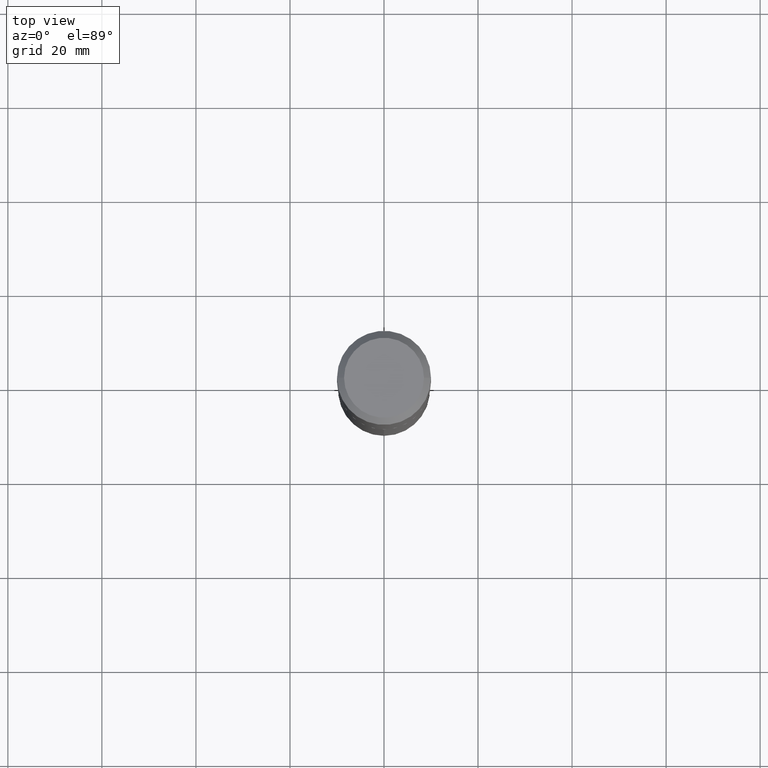
[diagram: clean part render]
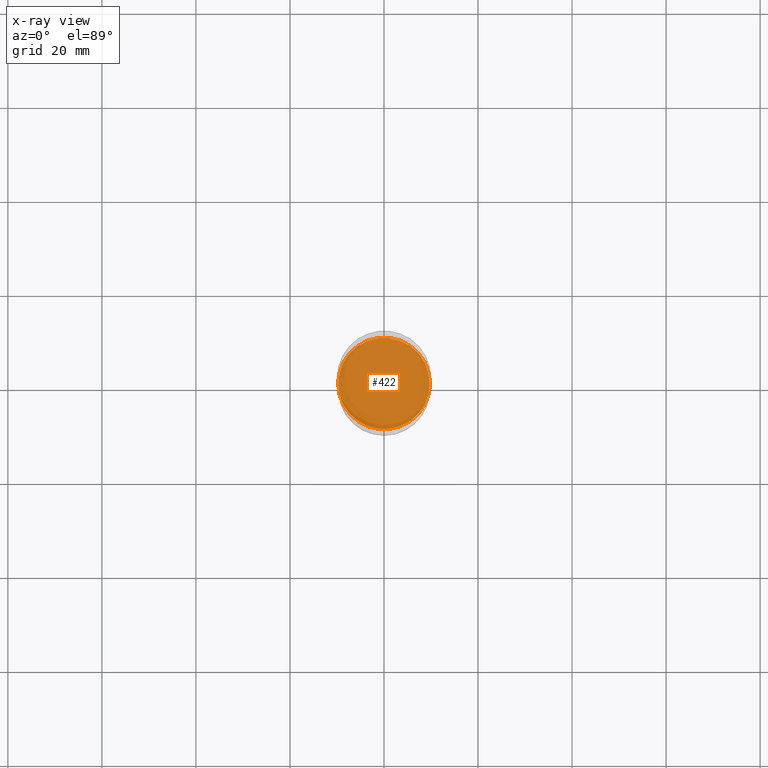
[diagram: x-ray — body ghosted, one internal face saturated and labeled with its STEP entity id]
A machine part, top view, then the same camera in x-ray: the body is ghosted and one INTERNAL B-rep face — a face not visible from any outside direction — is saturated and labeled: STEP entity #422.
In plain terms, the highlighted planar face has unit normal (-0, 0, 1).
Its self-contained STEP definition (entity closure, byte-faithful):
#19 = DIRECTION ( 'NONE',  ( 1.000000000000000000, -6.982962677686265922E-15, 4.876176775795935793E-29 ) ) ;
#23 = EDGE_LOOP ( 'NONE', ( #460, #24 ) ) ;
#24 = ORIENTED_EDGE ( 'NONE', *, *, #274, .F. ) ;
#45 = AXIS2_PLACEMENT_3D ( 'NONE', #257, #216, #19 ) ;
#55 = VERTEX_POINT ( 'NONE', #357 ) ;
#67 = FACE_OUTER_BOUND ( 'NONE', #23, .T. ) ;
#74 = DIRECTION ( 'NONE',  ( 1.000000000000000000, -6.982962677686268288E-15, 0.000000000000000000 ) ) ;
#116 = DIRECTION ( 'NONE',  ( -2.445468806185136597E-29, 3.491481338843145583E-15, 1.000000000000000000 ) ) ;
#175 = CARTESIAN_POINT ( 'NONE',  ( -0.3833500000000000241, -7.101656015999113082E-15, -2.814900000000000180 ) ) ;
#200 = AXIS2_PLACEMENT_3D ( 'NONE', #308, #116, #262 ) ;
#216 = DIRECTION ( 'NONE',  ( -2.438088387897960049E-29, 3.491481338843145188E-15, 1.000000000000000000 ) ) ;
#257 = CARTESIAN_POINT ( 'NONE',  ( 4.082229992490629720E-29, -1.384010712819125920E-14, -2.814899999999999736 ) ) ;
#259 = EDGE_CURVE ( 'NONE', #55, #425, #345, .T. ) ;
#262 = DIRECTION ( 'NONE',  ( 1.000000000000000000, -6.982962677686268288E-15, 0.000000000000000000 ) ) ;
#274 = EDGE_CURVE ( 'NONE', #425, #55, #487, .T. ) ;
#289 = CARTESIAN_POINT ( 'NONE',  ( 6.883750142530541901E-29, -9.828170820709569700E-15, -2.814900000000000180 ) ) ;
#308 = CARTESIAN_POINT ( 'NONE',  ( 6.883750142530541901E-29, -9.828170820709569700E-15, -2.814900000000000180 ) ) ;
#333 = PLANE ( 'NONE',  #45 ) ;
#345 = CIRCLE ( 'NONE', #473, 0.3833500000000000241 ) ;
#357 = CARTESIAN_POINT ( 'NONE',  ( 0.3833500000000000241, -1.250508956320060030E-14, -2.814900000000000180 ) ) ;
#412 = DIRECTION ( 'NONE',  ( -2.445468806185136597E-29, 3.491481338843145583E-15, 1.000000000000000000 ) ) ;
#422 = ADVANCED_FACE ( 'NONE', ( #67 ), #333, .F. ) ;
#425 = VERTEX_POINT ( 'NONE', #175 ) ;
#460 = ORIENTED_EDGE ( 'NONE', *, *, #259, .F. ) ;
#473 = AXIS2_PLACEMENT_3D ( 'NONE', #289, #412, #74 ) ;
#487 = CIRCLE ( 'NONE', #200, 0.3833500000000000241 ) ;